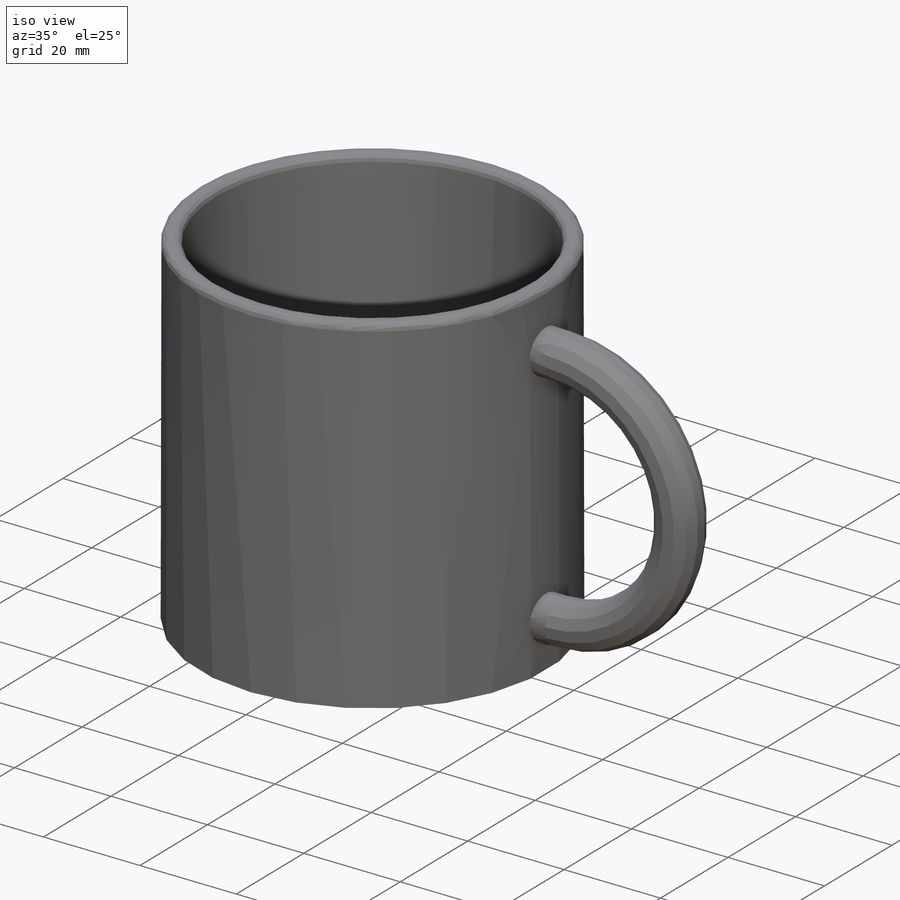
[diagram: iso view]
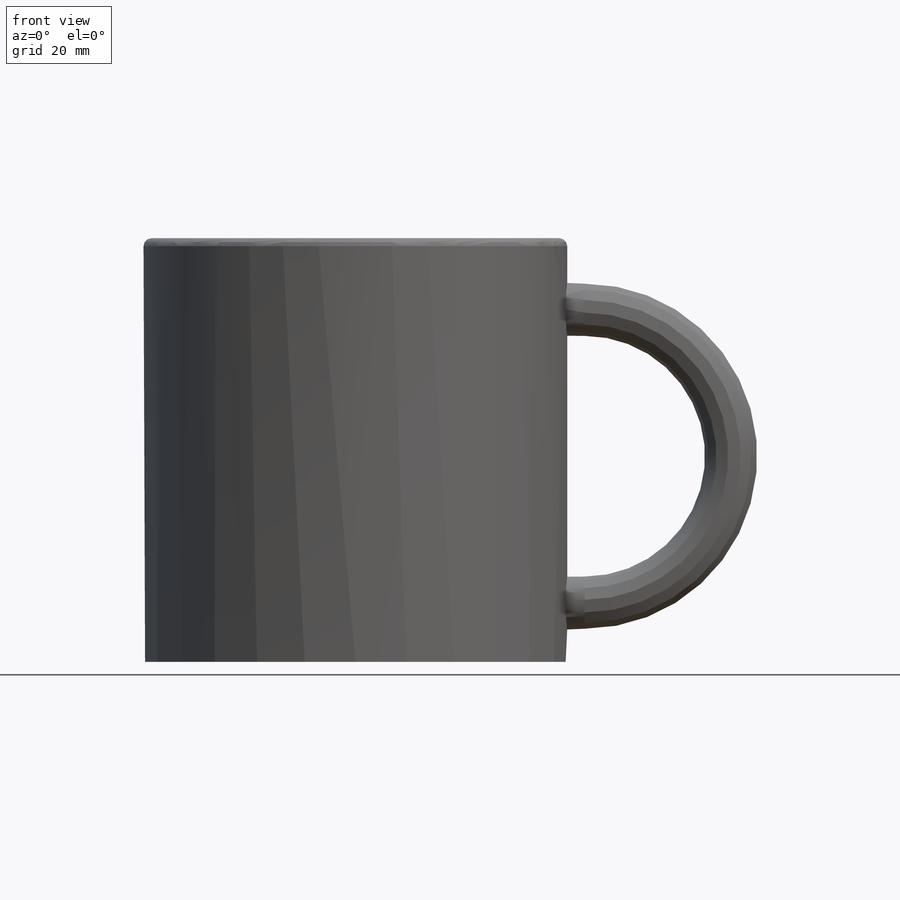
[diagram: front view]
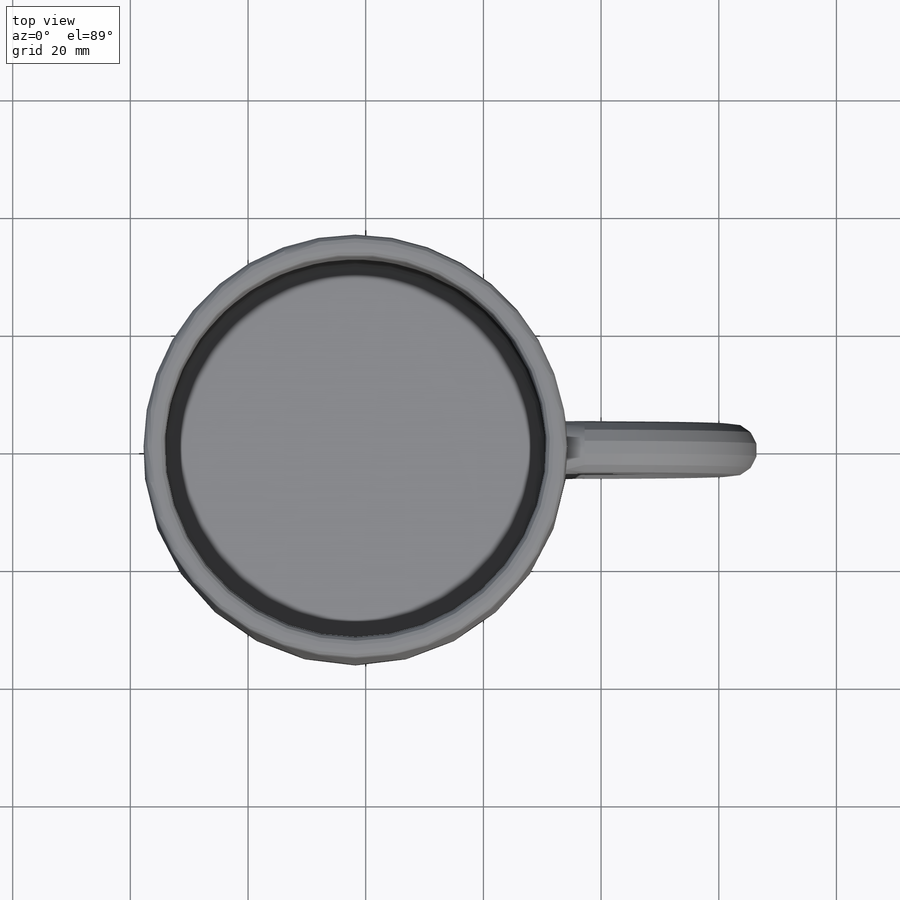
[diagram: top view]
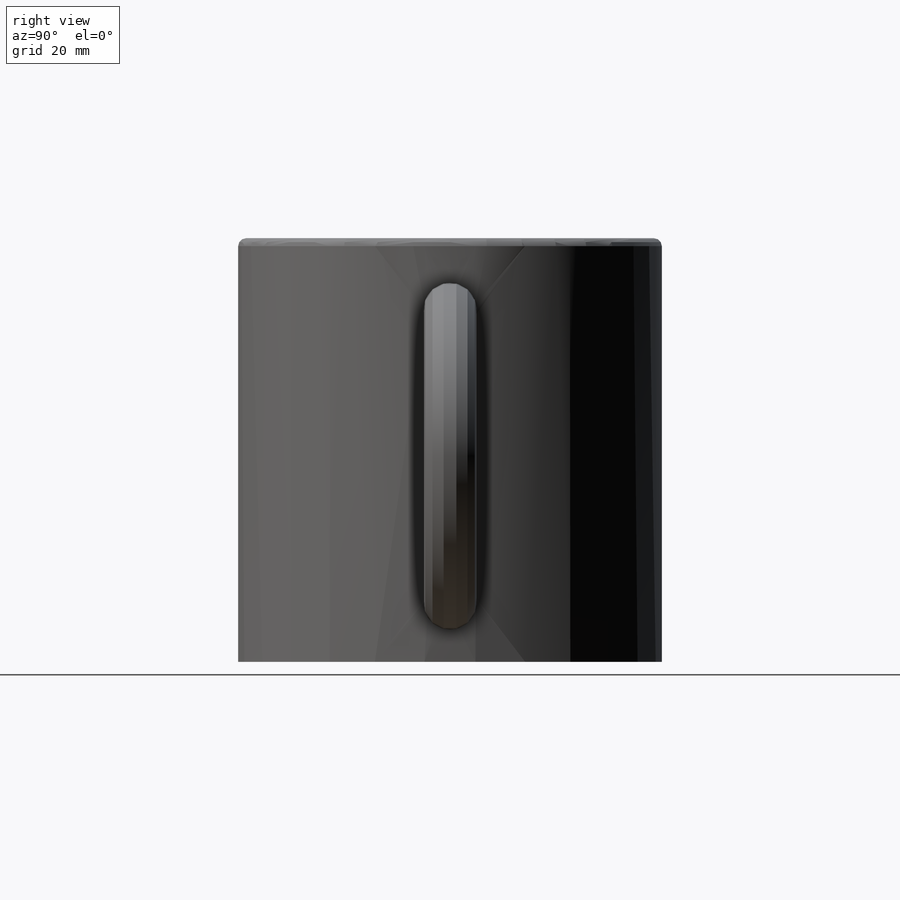
[diagram: right view]
SOLIDWORKS PART (.sldprt)
format: sldprt  version: not decoded by parser v0  size: 260,608 bytes
history: native  units: mm
features: sketch x4, fillet x2, material x1, extrude x1, sweep x1, cut_extrude x1 (+11 scaffold rows collapsed)
feature tree (21):
  scaffold x11  (default folders/planes/origin — collapsed)
  material  "Material <sin especificar>"
  sketch  "Sketch1"  dims[D1=40.0mm]
  extrude  "Extrude1"  Depth=40mm
  sketch  "Sketch2"  dims[D1=5.0mm]
  sketch  "Sketch3"  dims[D2=11.36mm D1=21.65mm]
  sweep  "Sweep1"
  sketch  "Sketch4"  dims[D1=2.0mm]
  cut_extrude  "Cut-Extrude1"  Depth=2mm
  fillet  "Fillet1"  Radius=0.75mm
  fillet  "Fillet2"  Radius=0.75mm
decode coverage: 8 of 9 modeling features carry decoded parameters
note: suppression state not decoded; provenance and decode notes live in map.json
